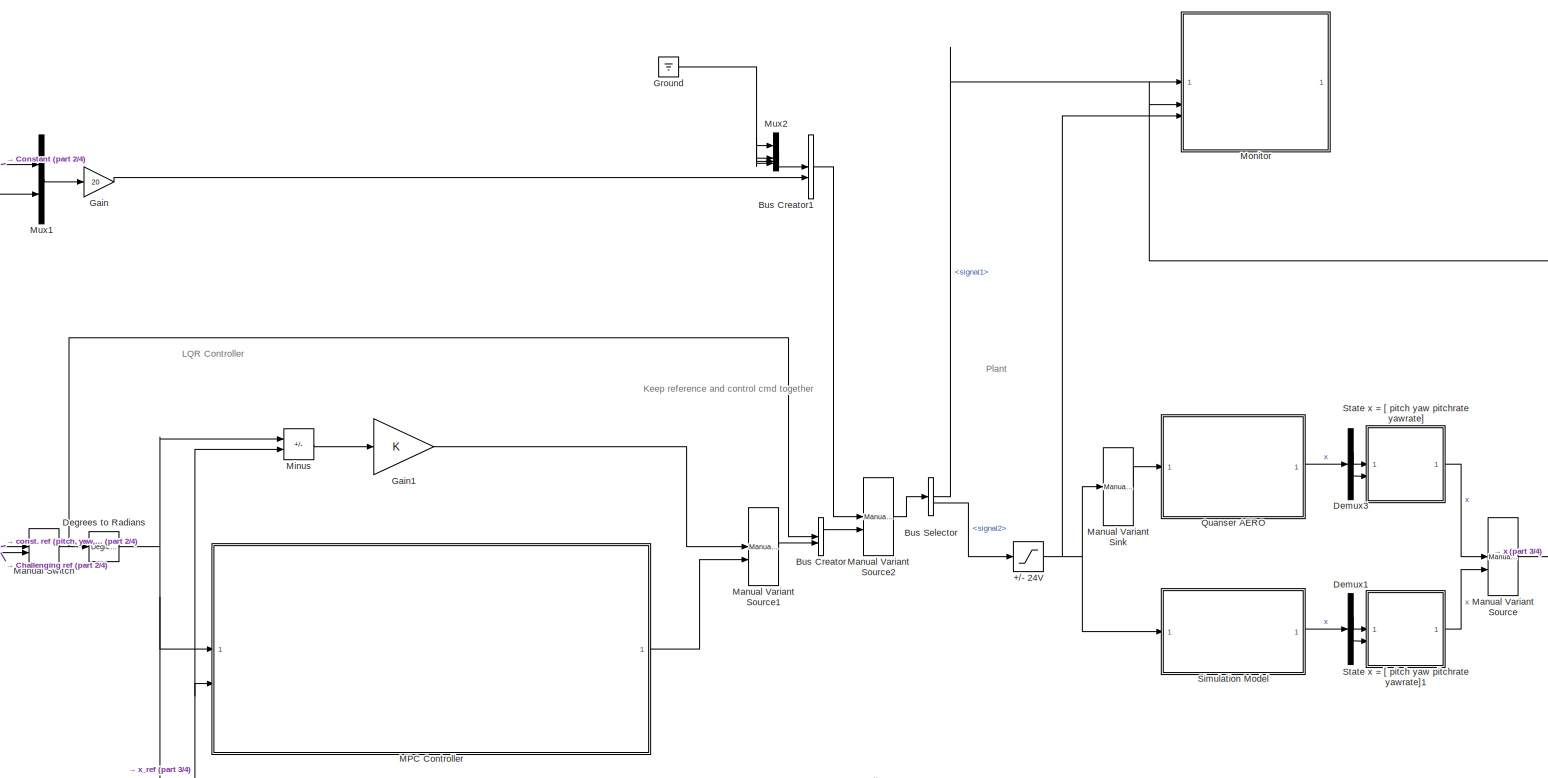
[diagram: root canvas - part 1/4, most of the canvas]
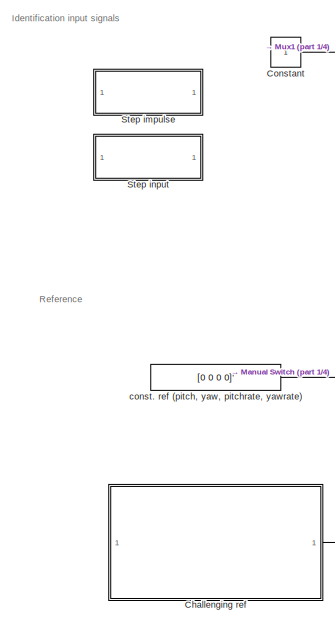
[diagram: root canvas - part 2/4, middle left region]
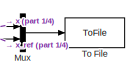
[diagram: root canvas - part 3/4, bottom right region]
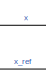
[diagram: root canvas - part 4/4, bottom center region]
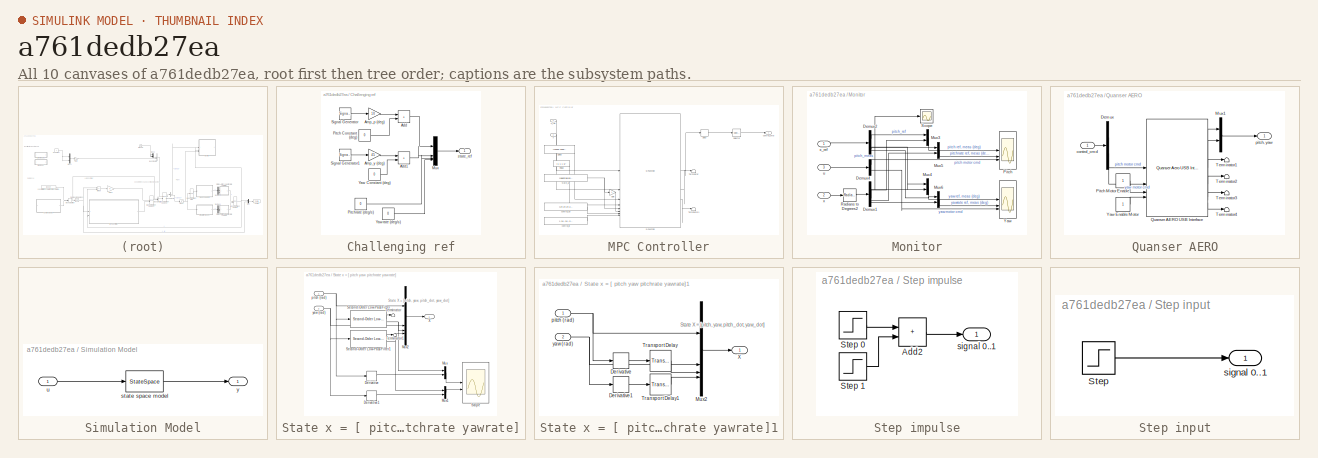
[diagram: thumbnail index - all 10 canvases of the model, root first then tree order]
MODEL slx_a761dedb27ea
KIND model
CONFIG AbsTol = auto
CONFIG EnableMultiTasking = on
CONFIG FixedStep = 0.002
CONFIG MaxStep = auto
CONFIG MinStep = auto
CONFIG PreLoadFcn = quanser_aero_parameters;\nquanser_aero_state_space;\nquanser_aero_lqr;
CONFIG RelTol = 1e-3
CONFIG SampleTimeConstraint = Unconstrained
CONFIG SolverName = ode1
CONFIG StartTime = 0.0
CONFIG StopTime = 30
BLOCK [Saturate] +//- 24V
  LowerLimit = -24
  UpperLimit = 24
BLOCK [BusCreator] Bus Creator
  DisplayOption = bar
  InheritFromInputs = on
  Inputs = 2
BLOCK [BusCreator] Bus Creator1
  DisplayOption = bar
  InheritFromInputs = on
  Inputs = 2
BLOCK [BusSelector] Bus Selector
  OutputSignals = signal1,signal2
BLOCK [SubSystem] Challenging ref
BLOCK [Sum] Challenging ref/Add
  IconShape = rectangular
BLOCK [Sum] Challenging ref/Add1
  IconShape = rectangular
BLOCK [Gain] Challenging ref/Amp_p (deg)
  Gain = 10
BLOCK [Gain] Challenging ref/Amp_y (deg)
  Gain = 45
BLOCK [Mux] Challenging ref/Mux
  DisplayOption = bar
BLOCK [Constant] Challenging ref/Pitch Constant (deg)
  Value = 0
BLOCK [Constant] Challenging ref/Pitchrate (deg//s)
  Value = 0
BLOCK [SignalGenerator] Challenging ref/Signal Generator
  Frequency = 0.1
  WaveForm = square
BLOCK [SignalGenerator] Challenging ref/Signal Generator1
  Frequency = 0.04
  WaveForm = square
BLOCK [Constant] Challenging ref/Yaw Constant (deg)
  Value = 0
BLOCK [Constant] Challenging ref/Yawrate (deg//s)
  Value = 0
BLOCK [Outport] Challenging ref/state_ref
BLOCK [Constant] Constant
BLOCK [Reference] Degrees to Radians  REF=simulink_extras/Transformations/Degrees to
Radians
  SourceBlock = simulink_extras/Transformations/Degrees to\nRadians
  SourceType = DegreesToRadians
BLOCK [Demux] Demux1
  Outputs = 2
BLOCK [Demux] Demux3
  Outputs = 2
BLOCK [Gain] Gain
  Gain = 20
BLOCK [Gain] Gain1
  Gain = K
  Multiplication = Matrix(K*u) (u vector)
BLOCK [Ground] Ground
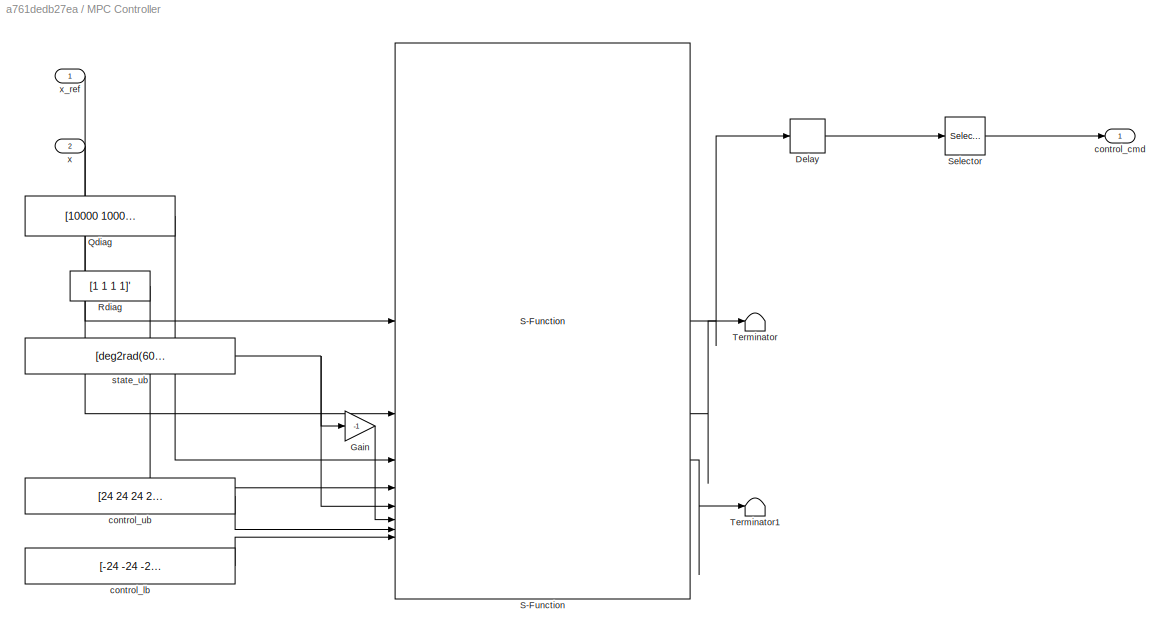
BLOCK [SubSystem] MPC Controller
BLOCK [Delay] MPC Controller/Delay
  DelayLength = 1
  InitialCondition = [0 0 0 0]'
  InputPortMap = u0
BLOCK [Gain] MPC Controller/Gain
  Gain = -1
BLOCK [Constant] MPC Controller/Qdiag
  Value = [10000 1000 0.1 0.1]'
BLOCK [Constant] MPC Controller/Rdiag
  Value = [1 1 1 1]'
BLOCK [S-Function] MPC Controller/S-Function
  EnableBusSupport = off
  FunctionName = aero_mpc
  Parameters = Ampc, Bmpc
  SFcnIsStateOwnerBlock = off
  SFunctionDeploymentMode = off
  SFunctionModules = aero_mpc_wrapper
BLOCK [Selector] MPC Controller/Selector
  IndexOptions = Index vector (dialog)
  Indices = [1 2]
  InputPortWidth = 4
  OutputSizes = 1
BLOCK [Terminator] MPC Controller/Terminator
BLOCK [Terminator] MPC Controller/Terminator1
BLOCK [Outport] MPC Controller/control_cmd 
BLOCK [Constant] MPC Controller/control_lb
  Value = [-24 -24 -24 -24]'
BLOCK [Constant] MPC Controller/control_ub
  Value = [24 24 24 24]'
BLOCK [Constant] MPC Controller/state_ub
  Value = [deg2rad(60) inf inf inf]'
BLOCK [Inport] MPC Controller/x
  Port = 2
BLOCK [Inport] MPC Controller/x_ref
BLOCK [ManualSwitch] Manual Switch
  CurrentSetting = 0
BLOCK [Reference] Manual Variant Sink  REF=simulink/Signal
Routing/Manual
Variant Sink
  SourceBlock = simulink/Signal\nRouting/Manual\nVariant Sink
  SourceType = ManualVariantSink
BLOCK [Reference] Manual Variant Source  REF=simulink/Signal
Routing/Manual
Variant Source
  SourceBlock = simulink/Signal\nRouting/Manual\nVariant Source
  SourceType = ManualVariantSource
BLOCK [Reference] Manual Variant Source1  REF=simulink/Signal
Routing/Manual
Variant Source
  SourceBlock = simulink/Signal\nRouting/Manual\nVariant Source
  SourceType = ManualVariantSource
BLOCK [Reference] Manual Variant Source2  REF=simulink/Signal
Routing/Manual
Variant Source
  SourceBlock = simulink/Signal\nRouting/Manual\nVariant Source
  SourceType = ManualVariantSource
BLOCK [Sum] Minus
  IconShape = rectangular
  Inputs = +-
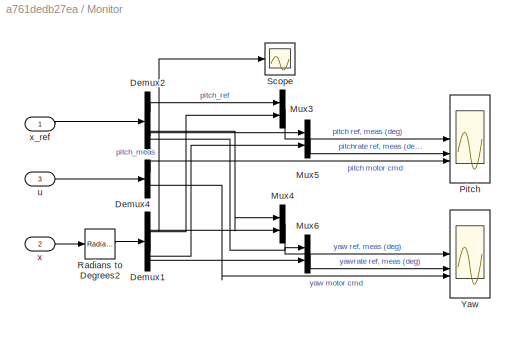
BLOCK [SubSystem] Monitor
BLOCK [Demux] Monitor/Demux1
BLOCK [Demux] Monitor/Demux2
BLOCK [Demux] Monitor/Demux4
  Outputs = 2
BLOCK [Mux] Monitor/Mux3
  DisplayOption = bar
  Inputs = 2
BLOCK [Mux] Monitor/Mux4
  DisplayOption = bar
  Inputs = 2
BLOCK [Mux] Monitor/Mux5
  DisplayOption = bar
  Inputs = 2
BLOCK [Mux] Monitor/Mux6
  DisplayOption = bar
  Inputs = 2
BLOCK [Scope] Monitor/Pitch
  Floating = off
  NumInputPorts = 3
  ScopeSpecificationString = Simulink.scopes.TimeScopeBlockCfg('CurrentConfiguration', extmgr.ConfigurationSet(extmgr.Configuration('Core','General UI',true),extmgr.Configuration('Core','Source UI',true),extmgr.Configuration('Sources','WiredSimulink',true,'DataLoggingVariableName','ScopeData1','DataLoggingDecimateData',true,'DataLoggingDecimation','1'),extmgr.Configuration('Visuals','Time Domain',true,'SerializedDisplays',{st...<+3243ch>
BLOCK [Reference] Monitor/Radians to Degrees2  REF=simulink_extras/Transformations/Radians
to Degrees
  SourceBlock = simulink_extras/Transformations/Radians\nto Degrees
  SourceType = RadiansToDegrees
BLOCK [Scope] Monitor/Scope
  Floating = off
  NumInputPorts = 1
  ScopeSpecificationString = Simulink.scopes.TimeScopeBlockCfg('CurrentConfiguration', extmgr.ConfigurationSet(extmgr.Configuration('Core','General UI',true),extmgr.Configuration('Core','Source UI',true),extmgr.Configuration('Sources','WiredSimulink',true,'DataLoggingVariableName','ScopeData1'),extmgr.Configuration('Visuals','Time Domain',true,'SerializedDisplays',{struct('MinYLimReal','-46.70411','MaxYLimReal','420.33702','Y...<+1498ch>
BLOCK [Scope] Monitor/Yaw
  Floating = off
  NumInputPorts = 3
  ScopeSpecificationString = Simulink.scopes.TimeScopeBlockCfg('CurrentConfiguration', extmgr.ConfigurationSet(extmgr.Configuration('Core','General UI',true),extmgr.Configuration('Core','Source UI',true),extmgr.Configuration('Sources','WiredSimulink',true,'DataLoggingVariableName','ScopeData2','DataLoggingDecimateData',true,'DataLoggingDecimation','1'),extmgr.Configuration('Visuals','Time Domain',true,'SerializedDisplays',{st...<+3217ch>
BLOCK [Inport] Monitor/u
  Port = 3
BLOCK [Inport] Monitor/x
  Port = 2
BLOCK [Inport] Monitor/x_ref
BLOCK [Mux] Mux
  DisplayOption = bar
  Inputs = 2
BLOCK [Mux] Mux1
  DisplayOption = bar
  Inputs = 2
BLOCK [Mux] Mux2
  DisplayOption = bar
BLOCK [SubSystem] Quanser AERO
BLOCK [Demux] Quanser AERO/Demux
  Outputs = 2
BLOCK [Mux] Quanser AERO/Mux1
  DisplayOption = bar
  Inputs = 2
BLOCK [Constant] Quanser AERO/Pitch Motor Enable
BLOCK [Reference] Quanser AERO/Quanser AERO USB Interface  REF=quanser_aero/Quanser Aero USB Interface  (lib defined in slx_27f8158dc1f1, slx_88e45530731e)
  SourceBlock = quanser_aero/Quanser Aero USB Interface
  SourceType = SubSystem
BLOCK [Terminator] Quanser AERO/Terminator1
BLOCK [Terminator] Quanser AERO/Terminator2
BLOCK [Terminator] Quanser AERO/Terminator3
BLOCK [Terminator] Quanser AERO/Terminator4
BLOCK [Constant] Quanser AERO/Yaw Enable Motor
BLOCK [Inport] Quanser AERO/control_cmd
BLOCK [Outport] Quanser AERO/pitch, yaw
BLOCK [SubSystem] Simulation Model
BLOCK [StateSpace] Simulation Model/state space model
  A = A
  B = B
  C = C
  D = D
  InitialCondition = [0.1 0.5 0 0]
BLOCK [Inport] Simulation Model/u
BLOCK [Outport] Simulation Model/y
BLOCK [SubSystem] State x = [ pitch yaw pitchrate yawrate]
BLOCK [Derivative] State x = [ pitch yaw pitchrate yawrate]/Derivative
  Commented = on
BLOCK [Derivative] State x = [ pitch yaw pitchrate yawrate]/Derivative1
  Commented = on
BLOCK [Mux] State x = [ pitch yaw pitchrate yawrate]/Mux
  Commented = on
  DisplayOption = bar
  Inputs = 2
BLOCK [Mux] State x = [ pitch yaw pitchrate yawrate]/Mux1
  Commented = on
  DisplayOption = bar
  Inputs = 2
BLOCK [Mux] State x = [ pitch yaw pitchrate yawrate]/Mux2
  DisplayOption = bar
BLOCK [Scope] State x = [ pitch yaw pitchrate yawrate]/Scope
  Commented = on
  Floating = off
  NumInputPorts = 2
  ScopeSpecificationString = Simulink.scopes.TimeScopeBlockCfg('CurrentConfiguration', extmgr.ConfigurationSet(extmgr.Configuration('Core','General UI',true),extmgr.Configuration('Core','Source UI',true),extmgr.Configuration('Sources','WiredSimulink',true,'DataLoggingVariableName','ScopeData1'),extmgr.Configuration('Visuals','Time Domain',true,'SerializedDisplays',{struct('MinYLimReal','-0.11338','MaxYLimReal','0.8906','YLabe...<+2167ch>
BLOCK [Reference] State x = [ pitch yaw pitchrate yawrate]/Second-Order Low-Pass Filter  REF=quarc_library/Continuous/Second-Order
Low-Pass Filter
  SourceBlock = quarc_library/Continuous/Second-Order\nLow-Pass Filter
  SourceProductName = QUARC Targets
  SourceType = Second-Order Low-Pass Filter
BLOCK [Reference] State x = [ pitch yaw pitchrate yawrate]/Second-Order Low-Pass Filter1  REF=quarc_library/Continuous/Second-Order
Low-Pass Filter
  SourceBlock = quarc_library/Continuous/Second-Order\nLow-Pass Filter
  SourceProductName = QUARC Targets
  SourceType = Second-Order Low-Pass Filter
BLOCK [Terminator] State x = [ pitch yaw pitchrate yawrate]/Terminator
BLOCK [Terminator] State x = [ pitch yaw pitchrate yawrate]/Terminator1
BLOCK [Outport] State x = [ pitch yaw pitchrate yawrate]/X
BLOCK [Inport] State x = [ pitch yaw pitchrate yawrate]/pitch (rad)
BLOCK [Inport] State x = [ pitch yaw pitchrate yawrate]/yaw (rad)
  Port = 2
BLOCK [SubSystem] State x = [ pitch yaw pitchrate yawrate]1
BLOCK [Derivative] State x = [ pitch yaw pitchrate yawrate]1/Derivative
BLOCK [Derivative] State x = [ pitch yaw pitchrate yawrate]1/Derivative1
BLOCK [Mux] State x = [ pitch yaw pitchrate yawrate]1/Mux2
  DisplayOption = bar
BLOCK [TransportDelay] State x = [ pitch yaw pitchrate yawrate]1/Transport Delay
  DelayTime = 0.03
BLOCK [TransportDelay] State x = [ pitch yaw pitchrate yawrate]1/Transport Delay1
  DelayTime = 0.03
BLOCK [Outport] State x = [ pitch yaw pitchrate yawrate]1/X
BLOCK [Inport] State x = [ pitch yaw pitchrate yawrate]1/pitch (rad)
BLOCK [Inport] State x = [ pitch yaw pitchrate yawrate]1/yaw (rad)
  Port = 2
BLOCK [SubSystem] Step impulse
BLOCK [Sum] Step impulse/Add2
  IconShape = rectangular
BLOCK [Step] Step impulse/Step 0
  SampleTime = 0
BLOCK [Step] Step impulse/Step 1
  After = -1
  SampleTime = 0
  Time = 1.75
BLOCK [Outport] Step impulse/signal 0..1
BLOCK [SubSystem] Step input
BLOCK [Step] Step input/Step
  SampleTime = 0
BLOCK [Outport] Step input/signal 0..1
BLOCK [ToFile] To File
  Filename = simout
BLOCK [Constant] const. ref (pitch, yaw, pitchrate, yawrate)
  Value = [0 0 0 0]'
ANNOTATION (root): Identification input signals
ANNOTATION (root): Keep reference and control cmd together
ANNOTATION (root): LQR Controller
ANNOTATION (root): Plant
ANNOTATION (root): Reference
ANNOTATION State x = [ pitch yaw pitchrate yawrate]: State X = [pitch, yaw, pitch_dot, yaw_dot]
ANNOTATION State x = [ pitch yaw pitchrate yawrate]1: State X = [pitch, yaw, pitch_dot, yaw_dot]
NET +//- 24V:1 -> Manual Variant Sink:1, Monitor:3, Simulation Model:1
LINE Bus Creator1:1 -> Manual Variant Source2:1
LINE Bus Creator:1 -> Manual Variant Source2:2
LINE Bus Selector:1 -> Monitor:1
LINE Bus Selector:2 -> +//- 24V:1
LINE Challenging ref/Add1:1 -> Challenging ref/Mux:2
LINE Challenging ref/Add:1 -> Challenging ref/Mux:1
LINE Challenging ref/Amp_p (deg):1 -> Challenging ref/Add:1
LINE Challenging ref/Amp_y (deg):1 -> Challenging ref/Add1:1
LINE Challenging ref/Mux:1 -> Challenging ref/state_ref:1
LINE Challenging ref/Pitch Constant (deg):1 -> Challenging ref/Add:2
LINE Challenging ref/Pitchrate (deg//s):1 -> Challenging ref/Mux:3
LINE Challenging ref/Signal Generator1:1 -> Challenging ref/Amp_y (deg):1
LINE Challenging ref/Signal Generator:1 -> Challenging ref/Amp_p (deg):1
LINE Challenging ref/Yaw Constant (deg):1 -> Challenging ref/Add1:2
LINE Challenging ref/Yawrate (deg//s):1 -> Challenging ref/Mux:4
LINE Challenging ref:1 -> Manual Switch:2
NET Constant:1 -> Mux1:1, Mux1:2
NET Degrees to Radians:1 -> MPC Controller:1, Minus:1, Mux:2
LINE Demux1:1 -> State x = [ pitch yaw pitchrate yawrate]1:1
LINE Demux1:2 -> State x = [ pitch yaw pitchrate yawrate]1:2
LINE Demux3:1 -> State x = [ pitch yaw pitchrate yawrate]:1
LINE Demux3:2 -> State x = [ pitch yaw pitchrate yawrate]:2
LINE Gain1:1 -> Manual Variant Source1:1
LINE Gain:1 -> Bus Creator1:2
NET Ground:1 -> Mux2:1, Mux2:2, Mux2:3, Mux2:4
LINE MPC Controller/Delay:1 -> MPC Controller/Selector:1
LINE MPC Controller/Gain:1 -> MPC Controller/S-Function:6
LINE MPC Controller/Qdiag:1 -> MPC Controller/S-Function:3
LINE MPC Controller/Rdiag:1 -> MPC Controller/S-Function:4
LINE MPC Controller/S-Function:1 -> MPC Controller/Delay:1
LINE MPC Controller/S-Function:2 -> MPC Controller/Terminator:1
LINE MPC Controller/S-Function:3 -> MPC Controller/Terminator1:1
LINE MPC Controller/Selector:1 -> MPC Controller/control_cmd :1
LINE MPC Controller/control_lb:1 -> MPC Controller/S-Function:8
LINE MPC Controller/control_ub:1 -> MPC Controller/S-Function:7
NET MPC Controller/state_ub:1 -> MPC Controller/Gain:1, MPC Controller/S-Function:5
LINE MPC Controller/x:1 -> MPC Controller/S-Function:2
LINE MPC Controller/x_ref:1 -> MPC Controller/S-Function:1
LINE MPC Controller:1 -> Manual Variant Source1:2
NET Manual Switch:1 -> Bus Creator:1, Degrees to Radians:1
LINE Manual Variant Sink:1 -> Quanser AERO:1
LINE Manual Variant Source1:1 -> Bus Creator:2
LINE Manual Variant Source2:1 -> Bus Selector:1
NET Manual Variant Source:1 -> MPC Controller:2, Minus:2, Monitor:2, Mux:1
LINE Minus:1 -> Gain1:1
NET Monitor/Demux1:1 -> Monitor/Mux3:2, Monitor/Scope:1
LINE Monitor/Demux1:2 -> Monitor/Mux4:2
LINE Monitor/Demux1:3 -> Monitor/Mux5:2
LINE Monitor/Demux1:4 -> Monitor/Mux6:2
LINE Monitor/Demux2:1 -> Monitor/Mux3:1
LINE Monitor/Demux2:2 -> Monitor/Mux4:1
LINE Monitor/Demux2:3 -> Monitor/Mux5:1
LINE Monitor/Demux2:4 -> Monitor/Mux6:1
LINE Monitor/Demux4:1 -> Monitor/Pitch:3
LINE Monitor/Demux4:2 -> Monitor/Yaw:3
LINE Monitor/Mux3:1 -> Monitor/Pitch:1
LINE Monitor/Mux4:1 -> Monitor/Yaw:1
LINE Monitor/Mux5:1 -> Monitor/Pitch:2
LINE Monitor/Mux6:1 -> Monitor/Yaw:2
LINE Monitor/Radians to Degrees2:1 -> Monitor/Demux1:1
LINE Monitor/u:1 -> Monitor/Demux4:1
LINE Monitor/x:1 -> Monitor/Radians to Degrees2:1
LINE Monitor/x_ref:1 -> Monitor/Demux2:1
LINE Mux1:1 -> Gain:1
LINE Mux2:1 -> Bus Creator1:1
LINE Mux:1 -> To File:1
LINE Quanser AERO/Demux:1 -> Quanser AERO/Quanser AERO USB Interface:1
LINE Quanser AERO/Demux:2 -> Quanser AERO/Quanser AERO USB Interface:2
LINE Quanser AERO/Mux1:1 -> Quanser AERO/pitch, yaw:1
LINE Quanser AERO/Pitch Motor Enable:1 -> Quanser AERO/Quanser AERO USB Interface:3
LINE Quanser AERO/Quanser AERO USB Interface:1 -> Quanser AERO/Mux1:1
LINE Quanser AERO/Quanser AERO USB Interface:2 -> Quanser AERO/Mux1:2
LINE Quanser AERO/Quanser AERO USB Interface:3 -> Quanser AERO/Terminator1:1
LINE Quanser AERO/Quanser AERO USB Interface:4 -> Quanser AERO/Terminator2:1
LINE Quanser AERO/Quanser AERO USB Interface:5 -> Quanser AERO/Terminator3:1
LINE Quanser AERO/Quanser AERO USB Interface:6 -> Quanser AERO/Terminator4:1
LINE Quanser AERO/Yaw Enable Motor:1 -> Quanser AERO/Quanser AERO USB Interface:4
LINE Quanser AERO/control_cmd:1 -> Quanser AERO/Demux:1
LINE Quanser AERO:1 -> Demux3:1
LINE Simulation Model/state space model:1 -> Simulation Model/y:1
LINE Simulation Model/u:1 -> Simulation Model/state space model:1
LINE Simulation Model:1 -> Demux1:1
LINE State x = [ pitch yaw pitchrate yawrate]/Derivative1:1 -> State x = [ pitch yaw pitchrate yawrate]/Mux1:2
LINE State x = [ pitch yaw pitchrate yawrate]/Derivative:1 -> State x = [ pitch yaw pitchrate yawrate]/Mux:2
LINE State x = [ pitch yaw pitchrate yawrate]/Mux1:1 -> State x = [ pitch yaw pitchrate yawrate]/Scope:2
LINE State x = [ pitch yaw pitchrate yawrate]/Mux2:1 -> State x = [ pitch yaw pitchrate yawrate]/X:1
LINE State x = [ pitch yaw pitchrate yawrate]/Mux:1 -> State x = [ pitch yaw pitchrate yawrate]/Scope:1
LINE State x = [ pitch yaw pitchrate yawrate]/Second-Order Low-Pass Filter1:1 -> State x = [ pitch yaw pitchrate yawrate]/Terminator1:1
NET State x = [ pitch yaw pitchrate yawrate]/Second-Order Low-Pass Filter1:2 -> State x = [ pitch yaw pitchrate yawrate]/Mux1:1, State x = [ pitch yaw pitchrate yawrate]/Mux2:4
LINE State x = [ pitch yaw pitchrate yawrate]/Second-Order Low-Pass Filter:1 -> State x = [ pitch yaw pitchrate yawrate]/Terminator:1
NET State x = [ pitch yaw pitchrate yawrate]/Second-Order Low-Pass Filter:2 -> State x = [ pitch yaw pitchrate yawrate]/Mux2:3, State x = [ pitch yaw pitchrate yawrate]/Mux:1
NET State x = [ pitch yaw pitchrate yawrate]/pitch (rad):1 -> State x = [ pitch yaw pitchrate yawrate]/Derivative:1, State x = [ pitch yaw pitchrate yawrate]/Mux2:1, State x = [ pitch yaw pitchrate yawrate]/Second-Order Low-Pass Filter:1
NET State x = [ pitch yaw pitchrate yawrate]/yaw (rad):1 -> State x = [ pitch yaw pitchrate yawrate]/Derivative1:1, State x = [ pitch yaw pitchrate yawrate]/Mux2:2, State x = [ pitch yaw pitchrate yawrate]/Second-Order Low-Pass Filter1:1
LINE State x = [ pitch yaw pitchrate yawrate]1/Derivative1:1 -> State x = [ pitch yaw pitchrate yawrate]1/Transport Delay1:1
LINE State x = [ pitch yaw pitchrate yawrate]1/Derivative:1 -> State x = [ pitch yaw pitchrate yawrate]1/Transport Delay:1
LINE State x = [ pitch yaw pitchrate yawrate]1/Mux2:1 -> State x = [ pitch yaw pitchrate yawrate]1/X:1
LINE State x = [ pitch yaw pitchrate yawrate]1/Transport Delay1:1 -> State x = [ pitch yaw pitchrate yawrate]1/Mux2:4
LINE State x = [ pitch yaw pitchrate yawrate]1/Transport Delay:1 -> State x = [ pitch yaw pitchrate yawrate]1/Mux2:3
NET State x = [ pitch yaw pitchrate yawrate]1/pitch (rad):1 -> State x = [ pitch yaw pitchrate yawrate]1/Derivative:1, State x = [ pitch yaw pitchrate yawrate]1/Mux2:1
NET State x = [ pitch yaw pitchrate yawrate]1/yaw (rad):1 -> State x = [ pitch yaw pitchrate yawrate]1/Derivative1:1, State x = [ pitch yaw pitchrate yawrate]1/Mux2:2
LINE State x = [ pitch yaw pitchrate yawrate]1:1 -> Manual Variant Source:2
LINE State x = [ pitch yaw pitchrate yawrate]:1 -> Manual Variant Source:1
LINE Step impulse/Add2:1 -> Step impulse/signal 0..1:1
LINE Step impulse/Step 0:1 -> Step impulse/Add2:1
LINE Step impulse/Step 1:1 -> Step impulse/Add2:2
LINE Step input/Step:1 -> Step input/signal 0..1:1
LINE const. ref (pitch, yaw, pitchrate, yawrate):1 -> Manual Switch:1
note: NET lines group one-source signal fan-out (src -> all destinations, sorted); 1:1 wires keep LINE
